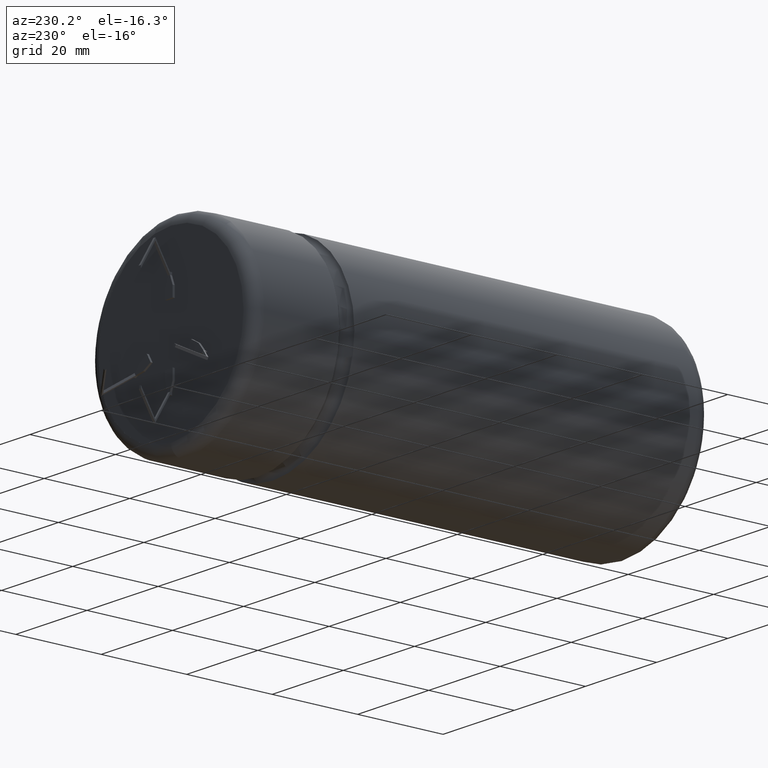
[diagram: clean part render]
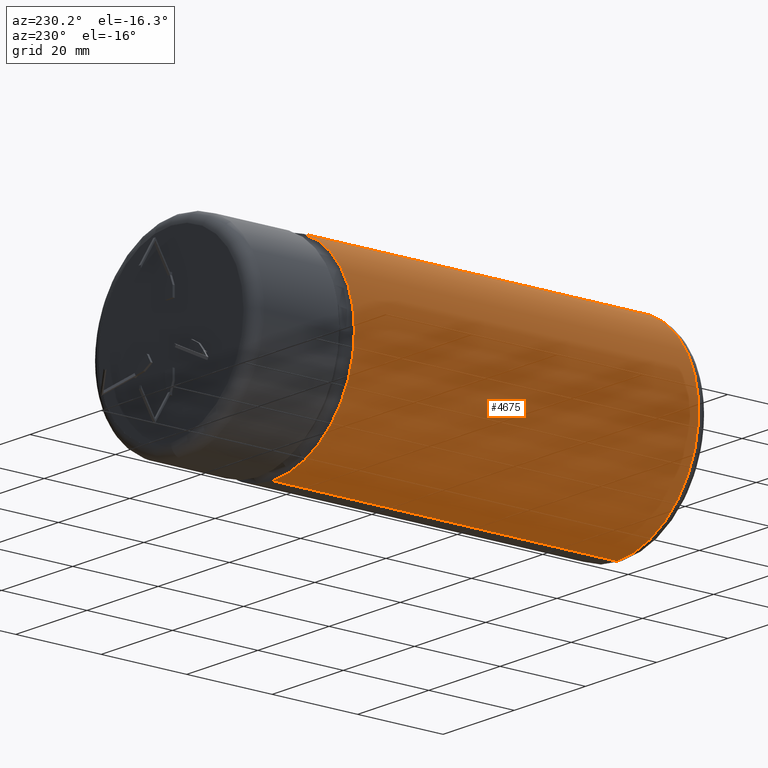
[diagram: same view with one face highlighted and labeled with its STEP entity id]
A machine part, auxiliary view. The second image highlights one B-rep face of the part: STEP entity #4675.
In plain terms, the highlighted cylindrical surface (partial cylindrical patch) has radius 23 mm, axis along (-0, -1, -0).
Its self-contained STEP definition (entity closure, byte-faithful):
#15 = EDGE_LOOP ( 'NONE', ( #2534, #2571, #3140, #2980, #3037, #2414, #4064, #3319, #1551, #4734, #3678, #2825, #1954, #3808, #3663, #4050, #1889, #1498, #4532, #1525, #908, #757, #929, #3028, #3903, #811, #3215, #1352, #709, #2206, #3878, #684, #324, #2391, #3997, #3681 ) ) ;
#86 = VECTOR ( 'NONE', #462, 1000.000000000000000 ) ;
#99 = EDGE_CURVE ( 'NONE', #4254, #1013, #1933, .T. ) ;
#133 = EDGE_CURVE ( 'NONE', #1909, #4254, #1438, .T. ) ;
#137 = VECTOR ( 'NONE', #1677, 1000.000000000000000 ) ;
#145 = VECTOR ( 'NONE', #4190, 1000.000000000000000 ) ;
#147 = VERTEX_POINT ( 'NONE', #885 ) ;
#153 = VERTEX_POINT ( 'NONE', #4485 ) ;
#166 = CARTESIAN_POINT ( 'NONE',  ( 2.464369924237599400E-009, 9.590142112564571200, 22.99999655599616200 ) ) ;
#173 = DIRECTION ( 'NONE',  ( -0.0000000000000000000, -1.000000000000000000, -0.0000000000000000000 ) ) ;
#201 = CARTESIAN_POINT ( 'NONE',  ( -0.9926097690553790100, 9.875455208347192500, 22.98393019702605900 ) ) ;
#242 = CARTESIAN_POINT ( 'NONE',  ( 2.816687638038912400E-015, 107.0000000000000000, 23.00000000000000000 ) ) ;
#258 = VECTOR ( 'NONE', #3059, 1000.000000000000000 ) ;
#270 = VERTEX_POINT ( 'NONE', #4712 ) ;
#274 = CARTESIAN_POINT ( 'NONE',  ( -0.1067636116675425000, 5.593961633424599200, 22.99975220586569000 ) ) ;
#275 = DIRECTION ( 'NONE',  ( 0.0000000000000000000, -1.000000000000000000, 0.0000000000000000000 ) ) ;
#303 = EDGE_CURVE ( 'NONE', #2813, #1579, #4490, .T. ) ;
#305 = DIRECTION ( 'NONE',  ( 0.0000000000000000000, -1.000000000000000000, 0.0000000000000000000 ) ) ;
#314 = CARTESIAN_POINT ( 'NONE',  ( -0.3507523770989162700, 8.011420447886024500, 22.99732533948153400 ) ) ;
#324 = ORIENTED_EDGE ( 'NONE', *, *, #3958, .F. ) ;
#330 = CARTESIAN_POINT ( 'NONE',  ( -0.5382324783177371300, 8.065980277909961400, 22.99446591604030800 ) ) ;
#347 = VERTEX_POINT ( 'NONE', #4670 ) ;
#385 = VECTOR ( 'NONE', #2727, 1000.000000000000000 ) ;
#411 = VERTEX_POINT ( 'NONE', #1732 ) ;
#424 = B_SPLINE_CURVE_WITH_KNOTS ( 'NONE', 3,
 ( #962, #4585, #1651, #1716 ),
 .UNSPECIFIED., .F., .F.,
 ( 4, 4 ),
 ( 0.0000000000000000000, 1.000000000000000000 ),
 .UNSPECIFIED. ) ;
#443 = EDGE_CURVE ( 'NONE', #2643, #3639, #830, .T. ) ;
#449 = CARTESIAN_POINT ( 'NONE',  ( 8.837512814423543300E-011, 11.22587473785111600, 22.99999831005900200 ) ) ;
#462 = DIRECTION ( 'NONE',  ( -0.0000000000000000000, -1.000000000000000000, -0.0000000000000000000 ) ) ;
#486 = EDGE_CURVE ( 'NONE', #411, #622, #3983, .T. ) ;
#518 = DIRECTION ( 'NONE',  ( -1.264299165142146600E-018, 1.000000000000000000, -0.0000000000000000000 ) ) ;
#567 = CARTESIAN_POINT ( 'NONE',  ( -5.545487515719014800E-010, 13.15961153160837000, 22.99999126037143100 ) ) ;
#591 = B_SPLINE_CURVE_WITH_KNOTS ( 'NONE', 3,
 ( #2309, #3445, #4502, #1645 ),
 .UNSPECIFIED., .F., .F.,
 ( 4, 4 ),
 ( 0.0000000000000000000, 0.4923300189481510900 ),
 .UNSPECIFIED. ) ;
#615 = CARTESIAN_POINT ( 'NONE',  ( 0.0000000000000000000, 107.0000000000000000, 0.0000000000000000000 ) ) ;
#617 = CARTESIAN_POINT ( 'NONE',  ( -0.4963037595985834700, 13.66651896509170800, 22.99998287305593400 ) ) ;
#622 = VERTEX_POINT ( 'NONE', #4352 ) ;
#649 = B_SPLINE_CURVE_WITH_KNOTS ( 'NONE', 3,
 ( #2355, #201, #1317, #166 ),
 .UNSPECIFIED., .F., .F.,
 ( 4, 4 ),
 ( 0.0000000000000000000, 0.6080031432952121000 ),
 .UNSPECIFIED. ) ;
#670 = CARTESIAN_POINT ( 'NONE',  ( 0.0000000000000000000, 107.0000000000000000, -23.00000000000000000 ) ) ;
#684 = ORIENTED_EDGE ( 'NONE', *, *, #1445, .F. ) ;
#695 = EDGE_CURVE ( 'NONE', #2352, #2167, #2282, .T. ) ;
#709 = ORIENTED_EDGE ( 'NONE', *, *, #3015, .F. ) ;
#712 = B_SPLINE_CURVE_WITH_KNOTS ( 'NONE', 3,
 ( #449, #2999, #819, #2656 ),
 .UNSPECIFIED., .F., .F.,
 ( 4, 4 ),
 ( 0.3108604251136364800, 1.000000000000000000 ),
 .UNSPECIFIED. ) ;
#724 = FACE_OUTER_BOUND ( 'NONE', #15, .T. ) ;
#727 = CARTESIAN_POINT ( 'NONE',  ( -1.487878018808655100, 7.005761591733938900, 22.95182387090721200 ) ) ;
#741 = B_SPLINE_CURVE_WITH_KNOTS ( 'NONE', 3,
 ( #3275, #3290, #4231, #2060 ),
 .UNSPECIFIED., .F., .F.,
 ( 4, 4 ),
 ( 0.5076699810500802100, 1.000000000000000000 ),
 .UNSPECIFIED. ) ;
#757 = ORIENTED_EDGE ( 'NONE', *, *, #2030, .F. ) ;
#778 = EDGE_CURVE ( 'NONE', #153, #1729, #591, .T. ) ;
#805 = CARTESIAN_POINT ( 'NONE',  ( 2.816687638038912400E-015, 107.0000000000000000, 23.00000000000000000 ) ) ;
#811 = ORIENTED_EDGE ( 'NONE', *, *, #4035, .F. ) ;
#818 = CARTESIAN_POINT ( 'NONE',  ( 1.715892231795464600E-012, 9.209264784672102500, 22.99999999086572100 ) ) ;
#819 = CARTESIAN_POINT ( 'NONE',  ( -0.9926103906621054400, 11.27930737402994600, 22.98393015672969900 ) ) ;
#830 = LINE ( 'NONE', #3975, #4586 ) ;
#831 = EDGE_CURVE ( 'NONE', #1456, #147, #4304, .T. ) ;
#863 = CARTESIAN_POINT ( 'NONE',  ( -1.487878018808659800, 11.30602379685905000, 22.95182387090721200 ) ) ;
#885 = CARTESIAN_POINT ( 'NONE',  ( 2.816687638038912400E-015, 83.23083999999998600, 23.00000000000000000 ) ) ;
#908 = ORIENTED_EDGE ( 'NONE', *, *, #2193, .F. ) ;
#922 = CARTESIAN_POINT ( 'NONE',  ( 1.715892231795464600E-012, 9.209264784672102500, 22.99999999086572100 ) ) ;
#927 = EDGE_CURVE ( 'NONE', #270, #4185, #4619, .T. ) ;
#929 = ORIENTED_EDGE ( 'NONE', *, *, #2759, .F. ) ;
#962 = CARTESIAN_POINT ( 'NONE',  ( -0.9046965665648928300, 18.63904554929095200, 22.98220015843665500 ) ) ;
#988 = CARTESIAN_POINT ( 'NONE',  ( -0.9047622497718439400, 17.81104015329512800, 22.98219757271675300 ) ) ;
#1002 = VECTOR ( 'NONE', #4519, 1000.000000000000000 ) ;
#1013 = VERTEX_POINT ( 'NONE', #2412 ) ;
#1039 = CARTESIAN_POINT ( 'NONE',  ( 8.837512814423543300E-011, 11.22587473785111600, 22.99999831005900200 ) ) ;
#1052 = VERTEX_POINT ( 'NONE', #3917 ) ;
#1054 = EDGE_CURVE ( 'NONE', #4535, #3722, #1380, .T. ) ;
#1075 = EDGE_CURVE ( 'NONE', #3661, #2624, #1585, .T. ) ;
#1081 = EDGE_CURVE ( 'NONE', #3530, #4683, #2713, .T. ) ;
#1111 = B_SPLINE_CURVE_WITH_KNOTS ( 'NONE', 3,
 ( #2847, #3163, #4294, #3518 ),
 .UNSPECIFIED., .F., .F.,
 ( 4, 4 ),
 ( 0.0000000000000000000, 0.6891395423942268100 ),
 .UNSPECIFIED. ) ;
#1149 = CARTESIAN_POINT ( 'NONE',  ( -0.9047403553707484800, 18.08704195196040100, 22.98219843465467300 ) ) ;
#1197 = CARTESIAN_POINT ( 'NONE',  ( -1.058895923136712100, 4.971697550838418200, 22.97963312189321900 ) ) ;
#1276 = VECTOR ( 'NONE', #275, 1000.000000000000000 ) ;
#1278 = AXIS2_PLACEMENT_3D ( 'NONE', #4145, #518, #2715 ) ;
#1311 = DIRECTION ( 'NONE',  ( -0.0000000000000000000, -1.000000000000000000, -0.0000000000000000000 ) ) ;
#1317 = CARTESIAN_POINT ( 'NONE',  ( -0.4963052192051346500, 9.732798765527631300, 22.99999058056723600 ) ) ;
#1351 = CARTESIAN_POINT ( 'NONE',  ( -0.9130317145007974500, 8.175099936300513900, 22.98187053066646300 ) ) ;
#1352 = ORIENTED_EDGE ( 'NONE', *, *, #443, .F. ) ;
#1353 = CARTESIAN_POINT ( 'NONE',  ( -0.3507523770989208800, 9.309453963844902100, 22.99732533948153400 ) ) ;
#1358 = EDGE_CURVE ( 'NONE', #1856, #1052, #712, .T. ) ;
#1380 = B_SPLINE_CURVE_WITH_KNOTS ( 'NONE', 3,
 ( #3531, #2470, #617, #1762 ),
 .UNSPECIFIED., .F., .F.,
 ( 4, 4 ),
 ( 0.0000000000000000000, 0.4923300189517310100 ),
 .UNSPECIFIED. ) ;
#1397 = LINE ( 'NONE', #3025, #385 ) ;
#1438 = B_SPLINE_CURVE_WITH_KNOTS ( 'NONE', 3,
 ( #3776, #1936, #1587, #4129 ),
 .UNSPECIFIED., .F., .F.,
 ( 4, 4 ),
 ( 0.0000000000000000000, 1.000000000000000000 ),
 .UNSPECIFIED. ) ;
#1445 = EDGE_CURVE ( 'NONE', #1938, #4535, #1960, .T. ) ;
#1446 = CARTESIAN_POINT ( 'NONE',  ( 0.0000000000000000000, 2.649600000000002200, 0.0000000000000000000 ) ) ;
#1452 = EDGE_CURVE ( 'NONE', #1052, #2513, #1815, .T. ) ;
#1456 = VERTEX_POINT ( 'NONE', #3090 ) ;
#1493 = EDGE_CURVE ( 'NONE', #4136, #4359, #424, .T. ) ;
#1498 = ORIENTED_EDGE ( 'NONE', *, *, #2900, .F. ) ;
#1525 = ORIENTED_EDGE ( 'NONE', *, *, #1811, .F. ) ;
#1551 = ORIENTED_EDGE ( 'NONE', *, *, #99, .F. ) ;
#1566 = EDGE_CURVE ( 'NONE', #3722, #1584, #3004, .T. ) ;
#1579 = VERTEX_POINT ( 'NONE', #2390 ) ;
#1584 = VERTEX_POINT ( 'NONE', #567 ) ;
#1585 = B_SPLINE_CURVE_WITH_KNOTS ( 'NONE', 3,
 ( #4271, #2485, #3214, #2102 ),
 .UNSPECIFIED., .F., .F.,
 ( 4, 4 ),
 ( 0.0000000000000000000, 1.000000000000000000 ),
 .UNSPECIFIED. ) ;
#1587 = CARTESIAN_POINT ( 'NONE',  ( -0.6291343443036853100, 5.153670007454452100, 22.99541234513050000 ) ) ;
#1610 = B_SPLINE_CURVE_WITH_KNOTS ( 'NONE', 3,
 ( #922, #4209, #2038, #3485 ),
 .UNSPECIFIED., .F., .F.,
 ( 4, 4 ),
 ( 0.3725967477875764000, 1.000000000000000000 ),
 .UNSPECIFIED. ) ;
#1626 = LINE ( 'NONE', #2345, #4649 ) ;
#1645 = CARTESIAN_POINT ( 'NONE',  ( -5.541144337341309400E-010, 3.805932655905925400, 22.99999126038471100 ) ) ;
#1650 = VECTOR ( 'NONE', #1822, 1000.000000000000000 ) ;
#1651 = CARTESIAN_POINT ( 'NONE',  ( -1.293623189104324400, 18.75093086216992000, 22.96441666060401600 ) ) ;
#1677 = DIRECTION ( 'NONE',  ( -0.0000000000000000000, -1.000000000000000000, -0.0000000000000000000 ) ) ;
#1716 = CARTESIAN_POINT ( 'NONE',  ( -1.487878018808659800, 18.80687351959832300, 22.95182387090721200 ) ) ;
#1729 = VERTEX_POINT ( 'NONE', #2459 ) ;
#1732 = CARTESIAN_POINT ( 'NONE',  ( -2.774080918137409300E-009, 17.55091878504546400, 22.99999674500881900 ) ) ;
#1747 = CARTESIAN_POINT ( 'NONE',  ( -1.487878018808655100, 10.01811258485632500, 22.95182387090721200 ) ) ;
#1749 = DIRECTION ( 'NONE',  ( 0.0000000000000000000, -1.000000000000000000, 0.0000000000000000000 ) ) ;
#1762 = CARTESIAN_POINT ( 'NONE',  ( -5.549950498436779800E-010, 13.52376457485996600, 22.99999126035782000 ) ) ;
#1764 = EDGE_CURVE ( 'NONE', #3639, #3713, #1111, .T. ) ;
#1790 = CARTESIAN_POINT ( 'NONE',  ( -0.1067636116675425000, 5.593961633424599200, 22.99975220586569000 ) ) ;
#1804 = EDGE_CURVE ( 'NONE', #1579, #347, #2230, .T. ) ;
#1811 = EDGE_CURVE ( 'NONE', #2474, #3530, #4153, .T. ) ;
#1815 = LINE ( 'NONE', #863, #1002 ) ;
#1822 = DIRECTION ( 'NONE',  ( 0.0000000000000000000, -1.000000000000000000, 0.0000000000000000000 ) ) ;
#1825 = CARTESIAN_POINT ( 'NONE',  ( -1.487878018808655100, 7.482266731005882600, 22.95182387090721200 ) ) ;
#1856 = VERTEX_POINT ( 'NONE', #1039 ) ;
#1858 = EDGE_CURVE ( 'NONE', #4185, #3412, #4083, .T. ) ;
#1889 = ORIENTED_EDGE ( 'NONE', *, *, #1075, .F. ) ;
#1909 = VERTEX_POINT ( 'NONE', #4007 ) ;
#1928 = CARTESIAN_POINT ( 'NONE',  ( -0.4963037597336917800, 7.196632404537122200, 22.99998287302988200 ) ) ;
#1933 = B_SPLINE_CURVE_WITH_KNOTS ( 'NONE', 3,
 ( #3815, #3385, #1197, #3063 ),
 .UNSPECIFIED., .F., .F.,
 ( 4, 4 ),
 ( 0.0000000000000000000, 1.000000000000000000 ),
 .UNSPECIFIED. ) ;
#1936 = CARTESIAN_POINT ( 'NONE',  ( -1.058895977786665300, 5.582093275247407500, 22.97963311835047400 ) ) ;
#1938 = VERTEX_POINT ( 'NONE', #3684 ) ;
#1954 = ORIENTED_EDGE ( 'NONE', *, *, #927, .F. ) ;
#1960 = LINE ( 'NONE', #2331, #258 ) ;
#1971 = CARTESIAN_POINT ( 'NONE',  ( 2.816687638038912400E-015, 107.0000000000000000, 23.00000000000000000 ) ) ;
#1994 = DIRECTION ( 'NONE',  ( -1.264299165142146600E-018, 1.000000000000000000, -0.0000000000000000000 ) ) ;
#2018 = LINE ( 'NONE', #3216, #1276 ) ;
#2030 = EDGE_CURVE ( 'NONE', #3708, #2678, #2317, .T. ) ;
#2038 = CARTESIAN_POINT ( 'NONE',  ( -0.2338439813164651700, 9.276057570426962300, 22.99910841195270500 ) ) ;
#2060 = CARTESIAN_POINT ( 'NONE',  ( -1.487878018808655100, 13.58768636036118800, 22.95182387090721200 ) ) ;
#2065 = CARTESIAN_POINT ( 'NONE',  ( -0.03558799361212319100, 5.623464515650527000, 22.99999996530271700 ) ) ;
#2102 = CARTESIAN_POINT ( 'NONE',  ( -1.487878018808659800, 9.716464161382818400, 22.95182387090721200 ) ) ;
#2147 = CARTESIAN_POINT ( 'NONE',  ( -0.5674766509440454200, 6.064561711544773600, 22.99761360073745900 ) ) ;
#2162 = EDGE_CURVE ( 'NONE', #2167, #270, #3575, .T. ) ;
#2167 = VERTEX_POINT ( 'NONE', #2997 ) ;
#2178 = CARTESIAN_POINT ( 'NONE',  ( -1.028125042434937500, 6.535161513613760000, 22.98162787914096900 ) ) ;
#2193 = EDGE_CURVE ( 'NONE', #2678, #2474, #1610, .T. ) ;
#2206 = ORIENTED_EDGE ( 'NONE', *, *, #1566, .F. ) ;
#2220 = CARTESIAN_POINT ( 'NONE',  ( -1.487878018808655100, 13.95202954761078100, 22.95182387090721200 ) ) ;
#2230 = CIRCLE ( 'NONE', #4270, 23.00000000000000000 ) ;
#2241 = CARTESIAN_POINT ( 'NONE',  ( 2.464369924237599400E-009, 9.590142112564571200, 22.99999655599616200 ) ) ;
#2243 = EDGE_CURVE ( 'NONE', #1729, #347, #3396, .T. ) ;
#2253 = CARTESIAN_POINT ( 'NONE',  ( -0.9047622497718439400, 17.81104015329512800, 22.98219757271675300 ) ) ;
#2282 = B_SPLINE_CURVE_WITH_KNOTS ( 'NONE', 3,
 ( #4105, #3356, #1928, #3036 ),
 .UNSPECIFIED., .F., .F.,
 ( 4, 4 ),
 ( 0.0000000000000000000, 0.4923300189535007600 ),
 .UNSPECIFIED. ) ;
#2309 = CARTESIAN_POINT ( 'NONE',  ( -1.487878018808659800, 4.233821869066428400, 22.95182387090721200 ) ) ;
#2317 = LINE ( 'NONE', #3157, #4027 ) ;
#2331 = CARTESIAN_POINT ( 'NONE',  ( -1.487878018808659800, 16.19708683617950100, 22.95182387090721200 ) ) ;
#2345 = CARTESIAN_POINT ( 'NONE',  ( -1.487878018808659800, 18.80687351959832300, 22.95182387090721200 ) ) ;
#2352 = VERTEX_POINT ( 'NONE', #1825 ) ;
#2355 = CARTESIAN_POINT ( 'NONE',  ( -1.487878018808655100, 10.01811258485632500, 22.95182387090721200 ) ) ;
#2390 = CARTESIAN_POINT ( 'NONE',  ( 2.816687638038913100E-015, 2.649600000000002200, -23.00000000000000000 ) ) ;
#2391 = ORIENTED_EDGE ( 'NONE', *, *, #1493, .F. ) ;
#2412 = CARTESIAN_POINT ( 'NONE',  ( -1.487878018808655100, 5.094923105737322500, 22.95182387090721200 ) ) ;
#2413 = AXIS2_PLACEMENT_3D ( 'NONE', #615, #1311, #2796 ) ;
#2414 = ORIENTED_EDGE ( 'NONE', *, *, #2243, .F. ) ;
#2459 = CARTESIAN_POINT ( 'NONE',  ( -5.541144337341309400E-010, 3.805932655905925400, 22.99999126038471100 ) ) ;
#2470 = CARTESIAN_POINT ( 'NONE',  ( -0.9926076063620035100, 13.80927338397748500, 22.98393033722510700 ) ) ;
#2474 = VERTEX_POINT ( 'NONE', #4501 ) ;
#2485 = CARTESIAN_POINT ( 'NONE',  ( -1.104762483972603800, 9.607467109405449800, 22.97425338423185100 ) ) ;
#2513 = VERTEX_POINT ( 'NONE', #1747 ) ;
#2534 = ORIENTED_EDGE ( 'NONE', *, *, #3957, .F. ) ;
#2539 = DIRECTION ( 'NONE',  ( 0.0000000000000000000, 0.0000000000000000000, 1.000000000000000000 ) ) ;
#2571 = ORIENTED_EDGE ( 'NONE', *, *, #831, .F. ) ;
#2595 = CIRCLE ( 'NONE', #3743, 23.00000000000000000 ) ;
#2621 = CARTESIAN_POINT ( 'NONE',  ( -0.1992679994869747400, 4.725246544320452100, 22.99913677215691600 ) ) ;
#2624 = VERTEX_POINT ( 'NONE', #4079 ) ;
#2627 = LINE ( 'NONE', #3756, #4678 ) ;
#2634 = EDGE_CURVE ( 'NONE', #622, #4136, #3537, .T. ) ;
#2643 = VERTEX_POINT ( 'NONE', #3370 ) ;
#2656 = CARTESIAN_POINT ( 'NONE',  ( -1.487878018808659800, 11.30602379685905000, 22.95182387090721200 ) ) ;
#2678 = VERTEX_POINT ( 'NONE', #818 ) ;
#2688 = CARTESIAN_POINT ( 'NONE',  ( 4.787937641918880900E-009, 11.52282658067007900, 22.99999830582983400 ) ) ;
#2713 = B_SPLINE_CURVE_WITH_KNOTS ( 'NONE', 3,
 ( #314, #330, #3936, #4647 ),
 .UNSPECIFIED., .F., .F.,
 ( 4, 4 ),
 ( 0.0000000000000000000, 1.000000000000000000 ),
 .UNSPECIFIED. ) ;
#2715 = DIRECTION ( 'NONE',  ( -1.000000000000000000, 0.0000000000000000000, 0.0000000000000000000 ) ) ;
#2721 = DIRECTION ( 'NONE',  ( -0.0000000000000000000, -1.000000000000000000, -0.0000000000000000000 ) ) ;
#2727 = DIRECTION ( 'NONE',  ( -0.0000000000000000000, -1.000000000000000000, -0.0000000000000000000 ) ) ;
#2759 = EDGE_CURVE ( 'NONE', #2513, #3708, #649, .T. ) ;
#2796 = DIRECTION ( 'NONE',  ( 0.0000000000000000000, 0.0000000000000000000, -1.000000000000000000 ) ) ;
#2813 = VERTEX_POINT ( 'NONE', #3147 ) ;
#2825 = ORIENTED_EDGE ( 'NONE', *, *, #1858, .F. ) ;
#2836 = LINE ( 'NONE', #3926, #3915 ) ;
#2847 = CARTESIAN_POINT ( 'NONE',  ( -1.487878018808655100, 12.26128104296445000, 22.95182387090721200 ) ) ;
#2892 = LINE ( 'NONE', #1351, #3293 ) ;
#2900 = EDGE_CURVE ( 'NONE', #4683, #3661, #2892, .T. ) ;
#2907 = VECTOR ( 'NONE', #4306, 1000.000000000000000 ) ;
#2980 = ORIENTED_EDGE ( 'NONE', *, *, #303, .T. ) ;
#2986 = EDGE_CURVE ( 'NONE', #3412, #1909, #2018, .T. ) ;
#2997 = CARTESIAN_POINT ( 'NONE',  ( -5.554290830783782400E-010, 7.053816142662740600, 22.99999126034453700 ) ) ;
#2999 = CARTESIAN_POINT ( 'NONE',  ( -0.4963056455789929800, 11.25259108117081500, 22.99999387731632800 ) ) ;
#3004 = LINE ( 'NONE', #242, #137 ) ;
#3015 = EDGE_CURVE ( 'NONE', #1584, #2643, #741, .T. ) ;
#3025 = CARTESIAN_POINT ( 'NONE',  ( 2.816687638038912400E-015, 107.0000000000000000, 23.00000000000000000 ) ) ;
#3028 = ORIENTED_EDGE ( 'NONE', *, *, #1452, .F. ) ;
#3036 = CARTESIAN_POINT ( 'NONE',  ( -5.554290830783782400E-010, 7.053816142662740600, 22.99999126034453700 ) ) ;
#3037 = ORIENTED_EDGE ( 'NONE', *, *, #1804, .T. ) ;
#3058 = CARTESIAN_POINT ( 'NONE',  ( -1.487878018808659800, 5.094923105737322500, 22.95182387090721200 ) ) ;
#3059 = DIRECTION ( 'NONE',  ( 0.0000000000000000000, -1.000000000000000000, 0.0000000000000000000 ) ) ;
#3063 = CARTESIAN_POINT ( 'NONE',  ( -1.487878018808655100, 5.094923105737322500, 22.95182387090721200 ) ) ;
#3090 = CARTESIAN_POINT ( 'NONE',  ( -23.00000000000000000, 83.23083999999998600, 0.0000000000000000000 ) ) ;
#3092 = DIRECTION ( 'NONE',  ( 0.0000000000000000000, -1.000000000000000000, 0.0000000000000000000 ) ) ;
#3140 = ORIENTED_EDGE ( 'NONE', *, *, #3611, .F. ) ;
#3147 = CARTESIAN_POINT ( 'NONE',  ( 0.0000000000000000000, 83.23083999999998600, -23.00000000000000000 ) ) ;
#3157 = CARTESIAN_POINT ( 'NONE',  ( 2.816687638038912400E-015, 107.0000000000000000, 23.00000000000000000 ) ) ;
#3163 = CARTESIAN_POINT ( 'NONE',  ( -0.9926106389768508700, 12.01512903637117300, 22.98393014063241300 ) ) ;
#3188 = CARTESIAN_POINT ( 'NONE',  ( -0.6033295767506128300, 17.72433277039641200, 22.99406436232790400 ) ) ;
#3204 = CARTESIAN_POINT ( 'NONE',  ( -0.3016646429750304300, 17.63762572886995600, 22.99999527249345400 ) ) ;
#3214 = CARTESIAN_POINT ( 'NONE',  ( -1.296397919498264900, 9.661965634482976700, 22.96423678555859700 ) ) ;
#3215 = ORIENTED_EDGE ( 'NONE', *, *, #1764, .F. ) ;
#3216 = CARTESIAN_POINT ( 'NONE',  ( -1.487878018808659800, 7.005761591733938900, 22.95182387090721200 ) ) ;
#3275 = CARTESIAN_POINT ( 'NONE',  ( -5.545487515719014800E-010, 13.15961153160837000, 22.99999126037143100 ) ) ;
#3290 = CARTESIAN_POINT ( 'NONE',  ( -0.4963037594602170400, 13.30230254073436700, 22.99998287308262900 ) ) ;
#3293 = VECTOR ( 'NONE', #4654, 1000.000000000000000 ) ;
#3316 = LINE ( 'NONE', #3058, #3941 ) ;
#3319 = ORIENTED_EDGE ( 'NONE', *, *, #4041, .F. ) ;
#3356 = CARTESIAN_POINT ( 'NONE',  ( -0.9926076066253397600, 7.339448695076102400, 22.98393033720804400 ) ) ;
#3370 = CARTESIAN_POINT ( 'NONE',  ( -1.487878018808655100, 13.58768636036118800, 22.95182387090721200 ) ) ;
#3385 = CARTESIAN_POINT ( 'NONE',  ( -0.6291343990662886500, 4.848472099219356400, 22.99541234465602800 ) ) ;
#3396 = LINE ( 'NONE', #1971, #145 ) ;
#3412 = VERTEX_POINT ( 'NONE', #4733 ) ;
#3445 = CARTESIAN_POINT ( 'NONE',  ( -0.9926076058291446500, 4.091190959505461900, 22.98393033725965800 ) ) ;
#3482 = CARTESIAN_POINT ( 'NONE',  ( -1.487878018808659800, 18.80687351959832300, 22.95182387090721200 ) ) ;
#3485 = CARTESIAN_POINT ( 'NONE',  ( -0.3507523770989208800, 9.309453963844902100, 22.99732533948153400 ) ) ;
#3503 = CARTESIAN_POINT ( 'NONE',  ( -0.9046965665648928300, 18.63904554929095200, 22.98220015843665500 ) ) ;
#3518 = CARTESIAN_POINT ( 'NONE',  ( 4.787937641918880900E-009, 11.52282658067007900, 22.99999830582983400 ) ) ;
#3530 = VERTEX_POINT ( 'NONE', #4643 ) ;
#3531 = CARTESIAN_POINT ( 'NONE',  ( -1.487878018808655100, 13.95202954761078100, 22.95182387090721200 ) ) ;
#3537 = B_SPLINE_CURVE_WITH_KNOTS ( 'NONE', 3,
 ( #2253, #1149, #3725, #4433 ),
 .UNSPECIFIED., .F., .F.,
 ( 4, 4 ),
 ( 0.0000000000000000000, 1.000000000000000000 ),
 .UNSPECIFIED. ) ;
#3570 = CARTESIAN_POINT ( 'NONE',  ( -2.774080918137409300E-009, 17.55091878504546400, 22.99999674500881900 ) ) ;
#3575 = LINE ( 'NONE', #805, #86 ) ;
#3611 = EDGE_CURVE ( 'NONE', #2813, #1456, #2595, .T. ) ;
#3617 = CYLINDRICAL_SURFACE ( 'NONE', #2413, 23.00000000000000000 ) ;
#3639 = VERTEX_POINT ( 'NONE', #4483 ) ;
#3661 = VERTEX_POINT ( 'NONE', #4263 ) ;
#3663 = ORIENTED_EDGE ( 'NONE', *, *, #695, .F. ) ;
#3678 = ORIENTED_EDGE ( 'NONE', *, *, #2986, .F. ) ;
#3681 = ORIENTED_EDGE ( 'NONE', *, *, #486, .F. ) ;
#3684 = CARTESIAN_POINT ( 'NONE',  ( -1.487878018808659800, 16.19708683617950100, 22.95182387090721200 ) ) ;
#3708 = VERTEX_POINT ( 'NONE', #2241 ) ;
#3713 = VERTEX_POINT ( 'NONE', #2688 ) ;
#3722 = VERTEX_POINT ( 'NONE', #4106 ) ;
#3725 = CARTESIAN_POINT ( 'NONE',  ( -0.9047184609684312300, 18.36304375062567800, 22.98219929656130800 ) ) ;
#3743 = AXIS2_PLACEMENT_3D ( 'NONE', #4169, #1994, #4195 ) ;
#3756 = CARTESIAN_POINT ( 'NONE',  ( 2.816687638038912400E-015, 107.0000000000000000, 23.00000000000000000 ) ) ;
#3776 = CARTESIAN_POINT ( 'NONE',  ( -1.487878018808659800, 6.010516738381391600, 22.95182387090721200 ) ) ;
#3808 = ORIENTED_EDGE ( 'NONE', *, *, #2162, .F. ) ;
#3815 = CARTESIAN_POINT ( 'NONE',  ( -0.1992679994869747400, 4.725246544320452100, 22.99913677215691600 ) ) ;
#3878 = ORIENTED_EDGE ( 'NONE', *, *, #1054, .F. ) ;
#3881 = CARTESIAN_POINT ( 'NONE',  ( -0.9130317145007974500, 8.175099936300513900, 22.98187053066646300 ) ) ;
#3888 = CARTESIAN_POINT ( 'NONE',  ( -1.670155970252180200E-010, 5.638215953693872100, 22.99999995430554000 ) ) ;
#3903 = ORIENTED_EDGE ( 'NONE', *, *, #1358, .F. ) ;
#3912 = DIRECTION ( 'NONE',  ( 0.0000000000000000000, -1.000000000000000000, 0.0000000000000000000 ) ) ;
#3915 = VECTOR ( 'NONE', #1749, 1000.000000000000000 ) ;
#3917 = CARTESIAN_POINT ( 'NONE',  ( -1.487878018808659800, 11.30602379685905000, 22.95182387090721200 ) ) ;
#3926 = CARTESIAN_POINT ( 'NONE',  ( -1.487878018808659800, 9.716464161382818400, 22.95182387090721200 ) ) ;
#3936 = CARTESIAN_POINT ( 'NONE',  ( -0.7256776048517832300, 8.120540106276564500, 22.98931379964334500 ) ) ;
#3941 = VECTOR ( 'NONE', #3912, 1000.000000000000000 ) ;
#3957 = EDGE_CURVE ( 'NONE', #147, #411, #1397, .T. ) ;
#3958 = EDGE_CURVE ( 'NONE', #4359, #1938, #1626, .T. ) ;
#3975 = CARTESIAN_POINT ( 'NONE',  ( -1.487878018808659800, 13.58768636036120000, 22.95182387090721200 ) ) ;
#3983 = B_SPLINE_CURVE_WITH_KNOTS ( 'NONE', 3,
 ( #3570, #3204, #3188, #988 ),
 .UNSPECIFIED., .F., .F.,
 ( 4, 4 ),
 ( 0.6291466197334597600, 1.000000000000000000 ),
 .UNSPECIFIED. ) ;
#3997 = ORIENTED_EDGE ( 'NONE', *, *, #2634, .F. ) ;
#4007 = CARTESIAN_POINT ( 'NONE',  ( -1.487878018808659800, 6.010516738381391600, 22.95182387090721200 ) ) ;
#4027 = VECTOR ( 'NONE', #173, 1000.000000000000000 ) ;
#4035 = EDGE_CURVE ( 'NONE', #3713, #1856, #2627, .T. ) ;
#4041 = EDGE_CURVE ( 'NONE', #1013, #153, #3316, .T. ) ;
#4050 = ORIENTED_EDGE ( 'NONE', *, *, #4499, .F. ) ;
#4064 = ORIENTED_EDGE ( 'NONE', *, *, #778, .F. ) ;
#4079 = CARTESIAN_POINT ( 'NONE',  ( -1.487878018808659800, 9.716464161382818400, 22.95182387090721200 ) ) ;
#4083 = B_SPLINE_CURVE_WITH_KNOTS ( 'NONE', 3,
 ( #1790, #2147, #2178, #727 ),
 .UNSPECIFIED., .F., .F.,
 ( 4, 4 ),
 ( 0.0000000000000000000, 1.000000000000000000 ),
 .UNSPECIFIED. ) ;
#4105 = CARTESIAN_POINT ( 'NONE',  ( -1.487878018808655100, 7.482266731005882600, 22.95182387090721200 ) ) ;
#4106 = CARTESIAN_POINT ( 'NONE',  ( -5.549950498436779800E-010, 13.52376457485996600, 22.99999126035782000 ) ) ;
#4129 = CARTESIAN_POINT ( 'NONE',  ( -0.1992679994869747400, 4.725246544320452100, 22.99913677215691600 ) ) ;
#4136 = VERTEX_POINT ( 'NONE', #3503 ) ;
#4145 = CARTESIAN_POINT ( 'NONE',  ( -8.288284063117892200E-017, 83.23083999999998600, 0.0000000000000000000 ) ) ;
#4153 = LINE ( 'NONE', #1353, #1650 ) ;
#4169 = CARTESIAN_POINT ( 'NONE',  ( -8.288284063117892200E-017, 83.23083999999998600, 0.0000000000000000000 ) ) ;
#4185 = VERTEX_POINT ( 'NONE', #4703 ) ;
#4190 = DIRECTION ( 'NONE',  ( -0.0000000000000000000, -1.000000000000000000, -0.0000000000000000000 ) ) ;
#4195 = DIRECTION ( 'NONE',  ( -1.000000000000000000, 0.0000000000000000000, 0.0000000000000000000 ) ) ;
#4209 = CARTESIAN_POINT ( 'NONE',  ( -0.1169219909251556500, 9.242661177631879000, 22.99999997340242400 ) ) ;
#4231 = CARTESIAN_POINT ( 'NONE',  ( -0.9926076060923193500, 13.44499357850357200, 22.98393033724259400 ) ) ;
#4237 = CARTESIAN_POINT ( 'NONE',  ( -0.07117599157975475200, 5.608713075510945800, 22.99991740168246300 ) ) ;
#4254 = VERTEX_POINT ( 'NONE', #2621 ) ;
#4263 = CARTESIAN_POINT ( 'NONE',  ( -0.9130317145007927900, 9.552968582505608100, 22.98187053066646300 ) ) ;
#4270 = AXIS2_PLACEMENT_3D ( 'NONE', #1446, #4382, #2539 ) ;
#4271 = CARTESIAN_POINT ( 'NONE',  ( -0.9130317145007927900, 9.552968582505608100, 22.98187053066646300 ) ) ;
#4294 = CARTESIAN_POINT ( 'NONE',  ( -0.4963056769534820400, 11.76897799610250500, 22.99999386219871800 ) ) ;
#4304 = CIRCLE ( 'NONE', #1278, 23.00000000000000000 ) ;
#4306 = DIRECTION ( 'NONE',  ( -0.0000000000000000000, -1.000000000000000000, -0.0000000000000000000 ) ) ;
#4352 = CARTESIAN_POINT ( 'NONE',  ( -0.9047622497718439400, 17.81104015329512800, 22.98219757271675300 ) ) ;
#4359 = VERTEX_POINT ( 'NONE', #3482 ) ;
#4382 = DIRECTION ( 'NONE',  ( 0.0000000000000000000, 1.000000000000000000, 0.0000000000000000000 ) ) ;
#4433 = CARTESIAN_POINT ( 'NONE',  ( -0.9046965665648928300, 18.63904554929095200, 22.98220015843665500 ) ) ;
#4483 = CARTESIAN_POINT ( 'NONE',  ( -1.487878018808655100, 12.26128104296445000, 22.95182387090721200 ) ) ;
#4485 = CARTESIAN_POINT ( 'NONE',  ( -1.487878018808659800, 4.233821869066428400, 22.95182387090721200 ) ) ;
#4490 = LINE ( 'NONE', #670, #2907 ) ;
#4499 = EDGE_CURVE ( 'NONE', #2624, #2352, #2836, .T. ) ;
#4501 = CARTESIAN_POINT ( 'NONE',  ( -0.3507523770989208800, 9.309453963844902100, 22.99732533948153400 ) ) ;
#4502 = CARTESIAN_POINT ( 'NONE',  ( -0.4963037593251919400, 3.948561793389371300, 22.99998287310867100 ) ) ;
#4519 = DIRECTION ( 'NONE',  ( 0.0000000000000000000, -1.000000000000000000, 0.0000000000000000000 ) ) ;
#4532 = ORIENTED_EDGE ( 'NONE', *, *, #1081, .F. ) ;
#4535 = VERTEX_POINT ( 'NONE', #2220 ) ;
#4585 = CARTESIAN_POINT ( 'NONE',  ( -1.099208488716177700, 18.69498820671935500, 22.97454317751606800 ) ) ;
#4586 = VECTOR ( 'NONE', #305, 1000.000000000000000 ) ;
#4619 = B_SPLINE_CURVE_WITH_KNOTS ( 'NONE', 3,
 ( #3888, #2065, #4237, #274 ),
 .UNSPECIFIED., .F., .F.,
 ( 4, 4 ),
 ( 0.9349822251776069800, 1.000000000000000000 ),
 .UNSPECIFIED. ) ;
#4643 = CARTESIAN_POINT ( 'NONE',  ( -0.3507523770989162700, 8.011420447886024500, 22.99732533948153400 ) ) ;
#4647 = CARTESIAN_POINT ( 'NONE',  ( -0.9130317145007974500, 8.175099936300513900, 22.98187053066646300 ) ) ;
#4649 = VECTOR ( 'NONE', #3092, 1000.000000000000000 ) ;
#4654 = DIRECTION ( 'NONE',  ( 0.0000000000000000000, 1.000000000000000000, 0.0000000000000000000 ) ) ;
#4670 = CARTESIAN_POINT ( 'NONE',  ( 0.0000000000000000000, 2.649600000000002200, 23.00000000000000000 ) ) ;
#4675 = ADVANCED_FACE ( 'NONE', ( #724 ), #3617, .T. ) ;
#4678 = VECTOR ( 'NONE', #2721, 1000.000000000000000 ) ;
#4683 = VERTEX_POINT ( 'NONE', #3881 ) ;
#4703 = CARTESIAN_POINT ( 'NONE',  ( -0.1067636116675425000, 5.593961633424599200, 22.99975220586569000 ) ) ;
#4712 = CARTESIAN_POINT ( 'NONE',  ( -1.670155970252180200E-010, 5.638215953693872100, 22.99999995430554000 ) ) ;
#4733 = CARTESIAN_POINT ( 'NONE',  ( -1.487878018808655100, 7.005761591733938900, 22.95182387090721200 ) ) ;
#4734 = ORIENTED_EDGE ( 'NONE', *, *, #133, .F. ) ;